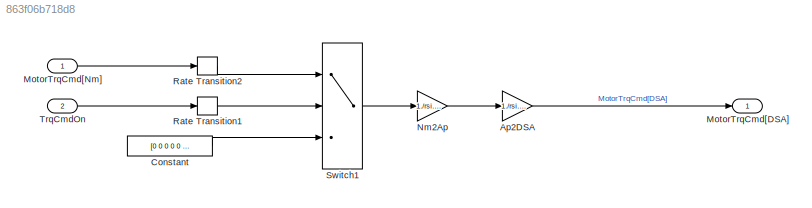
MODEL slx_863f06b718d8
KIND model
CONFIG AbsTol = auto
CONFIG FixedStep = si.SolverTimeStep
CONFIG MaxStep = auto
CONFIG MinStep = auto
CONFIG RelTol = 1e-3
CONFIG SampleTimeConstraint = Unconstrained
CONFIG Solver = FixedStepDiscrete
CONFIG SolverMode = Auto
CONFIG SolverName = FixedStepDiscrete
CONFIG StartTime = 0.0
CONFIG StopTime = 10.0
WORKSPACE source: MATLAB code (in-file)
WORKSPACE rsi = evalin('base', 'si.ri{1}')
BLOCK [Gain] Ap2DSA
  Gain = 1./rsi.DSA2Ap
  OutDataTypeStr = Inherit: Inherit via internal rule
  ParamDataTypeStr = Inherit: Inherit via internal rule
  SaturateOnIntegerOverflow = off
BLOCK [Constant] Constant
  SampleTime = si.tsv
  Value = [0 0 0 0 0 0]
BLOCK [Outport] MotorTrqCmd[DSA]
  IconDisplay = Port number
BLOCK [Inport] MotorTrqCmd[Nm]
  IconDisplay = Port number
  PortDimensions = 6
BLOCK [Gain] Nm2Ap
  Gain = 1./rsi.TrqCons
  OutDataTypeStr = Inherit: Inherit via internal rule
  ParamDataTypeStr = Inherit: Inherit via internal rule
  SaturateOnIntegerOverflow = off
BLOCK [RateTransition] Rate Transition1
  OutPortSampleTime = si.tsv
BLOCK [RateTransition] Rate Transition2
  OutPortSampleTime = si.tsv
BLOCK [Switch] Switch1
  Criteria = u2 > Threshold
  InputSameDT = off
  SaturateOnIntegerOverflow = off
BLOCK [Inport] TrqCmdOn
  IconDisplay = Port number
  OutDataTypeStr = boolean
  Port = 2
LINE Ap2DSA:1 -> MotorTrqCmd[DSA]:1
LINE Constant:1 -> Switch1:3
LINE MotorTrqCmd[Nm]:1 -> Rate Transition2:1
LINE Nm2Ap:1 -> Ap2DSA:1
LINE Rate Transition1:1 -> Switch1:2
LINE Rate Transition2:1 -> Switch1:1
LINE Switch1:1 -> Nm2Ap:1
LINE TrqCmdOn:1 -> Rate Transition1:1
